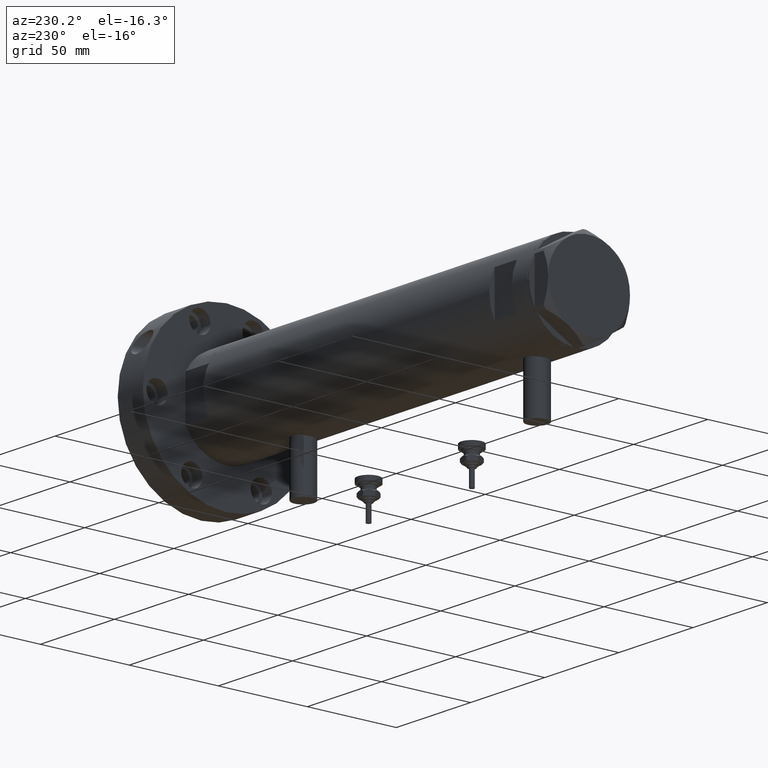
[diagram: clean part render]
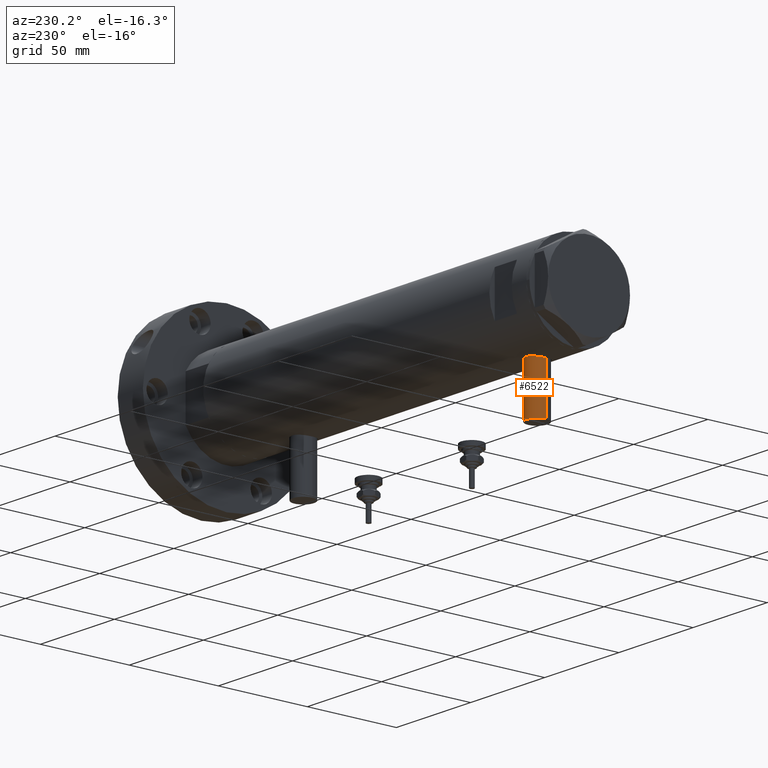
[diagram: same view with one face highlighted and labeled with its STEP entity id]
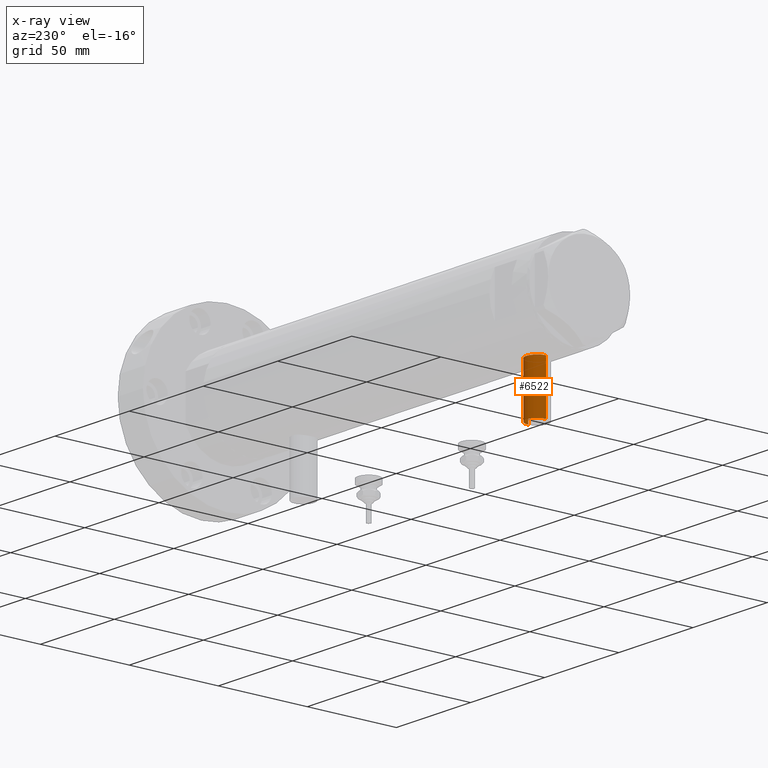
[diagram: x-ray of the same camera — body ghosted, the highlighted face saturated]
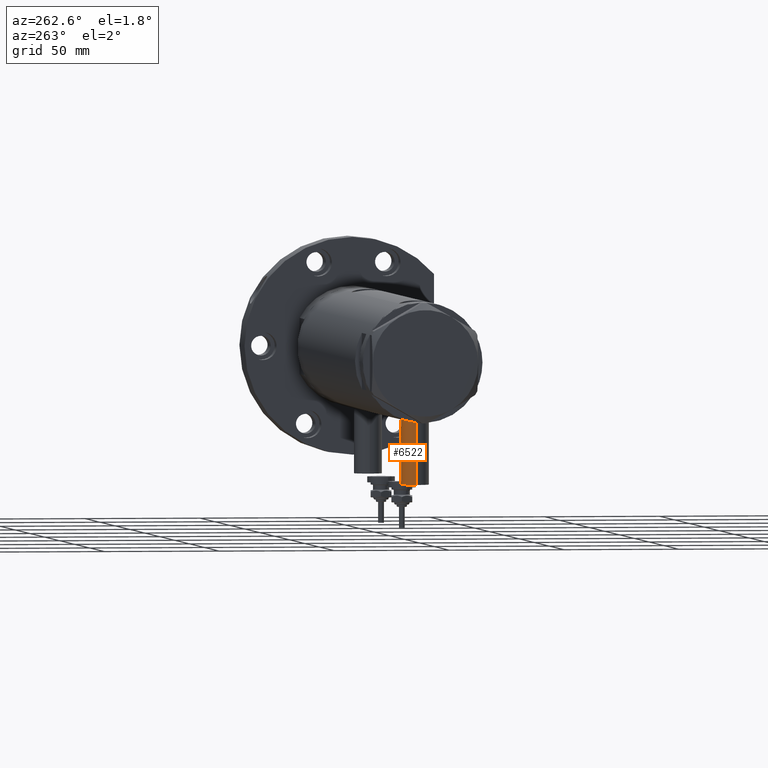
[diagram: same view with one face highlighted and labeled with its STEP entity id]
A machine part, auxiliary view. The second image highlights one B-rep face of the part: STEP entity #6522.
The next image is the same camera in x-ray: the body ghosted, the highlighted face saturated — about 0% of this face is hidden behind the body in this view.
A second angle (auxiliary view) of the same face is appended — the face is thin or edge-on in the first view.
In plain terms, the highlighted cylindrical surface (edge-blend (fillet) strip) has radius 6 mm, axis along (0, 0, 1).
Its self-contained STEP definition (entity closure, byte-faithful):
#58 = DIRECTION ( 'NONE',  ( 0.000000000000000000, 0.000000000000000000, 1.000000000000000000 ) ) ;
#293 = CYLINDRICAL_SURFACE ( 'NONE', #5189, 5.999999999999991118 ) ;
#434 = VERTEX_POINT ( 'NONE', #4160 ) ;
#900 = CARTESIAN_POINT ( 'NONE',  ( -24.80000000000000426, 0.000000000000000000, 78.95000000000000284 ) ) ;
#991 = VERTEX_POINT ( 'NONE', #6321 ) ;
#1300 = DIRECTION ( 'NONE',  ( -1.000000000000000000, 0.000000000000000000, 0.000000000000000000 ) ) ;
#1326 = VECTOR ( 'NONE', #2596, 1000.000000000000000 ) ;
#1620 = VERTEX_POINT ( 'NONE', #3035 ) ;
#1711 = ORIENTED_EDGE ( 'NONE', *, *, #7913, .F. ) ;
#1944 = CARTESIAN_POINT ( 'NONE',  ( -53.40000000000000568, 7.347880794884104945E-16, 90.94999999999998863 ) ) ;
#2596 = DIRECTION ( 'NONE',  ( 1.000000000000000000, -0.000000000000000000, -0.000000000000000000 ) ) ;
#3035 = CARTESIAN_POINT ( 'NONE',  ( -53.40000000000000568, 7.347880794884101001E-16, 90.94999999999998863 ) ) ;
#3155 = LINE ( 'NONE', #1944, #1326 ) ;
#3298 = LINE ( 'NONE', #6446, #5835 ) ;
#3506 = CIRCLE ( 'NONE', #7364, 5.999999999999991118 ) ;
#3806 = CARTESIAN_POINT ( 'NONE',  ( -53.40000000000000568, 0.000000000000000000, 84.95000000000000284 ) ) ;
#4035 = CARTESIAN_POINT ( 'NONE',  ( -53.40000000000000568, 0.000000000000000000, 84.95000000000000284 ) ) ;
#4160 = CARTESIAN_POINT ( 'NONE',  ( -53.40000000000000568, 0.000000000000000000, 78.95000000000000284 ) ) ;
#4314 = CARTESIAN_POINT ( 'NONE',  ( -24.80000000000000426, 0.000000000000000000, 84.95000000000000284 ) ) ;
#4819 = EDGE_LOOP ( 'NONE', ( #5918, #7855, #7612, #1711 ) ) ;
#5156 = DIRECTION ( 'NONE',  ( 1.000000000000000000, -0.000000000000000000, -0.000000000000000000 ) ) ;
#5189 = AXIS2_PLACEMENT_3D ( 'NONE', #4035, #7614, #7656 ) ;
#5835 = VECTOR ( 'NONE', #5156, 1000.000000000000000 ) ;
#5918 = ORIENTED_EDGE ( 'NONE', *, *, #7311, .F. ) ;
#6321 = CARTESIAN_POINT ( 'NONE',  ( -24.80000000000000426, 7.347880794884101001E-16, 90.94999999999998863 ) ) ;
#6393 = EDGE_CURVE ( 'NONE', #991, #6442, #6475, .T. ) ;
#6442 = VERTEX_POINT ( 'NONE', #900 ) ;
#6446 = CARTESIAN_POINT ( 'NONE',  ( -53.40000000000000568, 0.000000000000000000, 78.95000000000000284 ) ) ;
#6456 = FACE_OUTER_BOUND ( 'NONE', #4819, .T. ) ;
#6475 = CIRCLE ( 'NONE', #7238, 5.999999999999991118 ) ;
#6522 = ADVANCED_FACE ( 'NONE', ( #6456 ), #293, .T. ) ;
#7238 = AXIS2_PLACEMENT_3D ( 'NONE', #4314, #1300, #58 ) ;
#7311 = EDGE_CURVE ( 'NONE', #1620, #434, #3506, .T. ) ;
#7364 = AXIS2_PLACEMENT_3D ( 'NONE', #3806, #7473, #7430 ) ;
#7430 = DIRECTION ( 'NONE',  ( 0.000000000000000000, 0.000000000000000000, 1.000000000000000000 ) ) ;
#7473 = DIRECTION ( 'NONE',  ( -1.000000000000000000, 0.000000000000000000, 0.000000000000000000 ) ) ;
#7612 = ORIENTED_EDGE ( 'NONE', *, *, #6393, .T. ) ;
#7614 = DIRECTION ( 'NONE',  ( 1.000000000000000000, -0.000000000000000000, -0.000000000000000000 ) ) ;
#7633 = EDGE_CURVE ( 'NONE', #1620, #991, #3155, .T. ) ;
#7656 = DIRECTION ( 'NONE',  ( 0.000000000000000000, 0.000000000000000000, -1.000000000000000000 ) ) ;
#7855 = ORIENTED_EDGE ( 'NONE', *, *, #7633, .T. ) ;
#7913 = EDGE_CURVE ( 'NONE', #434, #6442, #3298, .T. ) ;